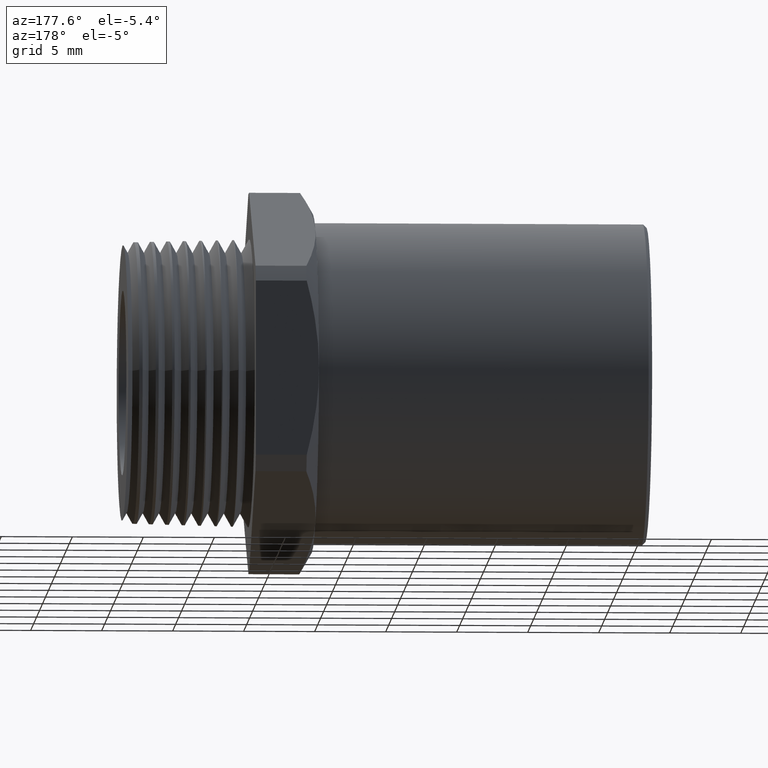
[diagram: clean part render]
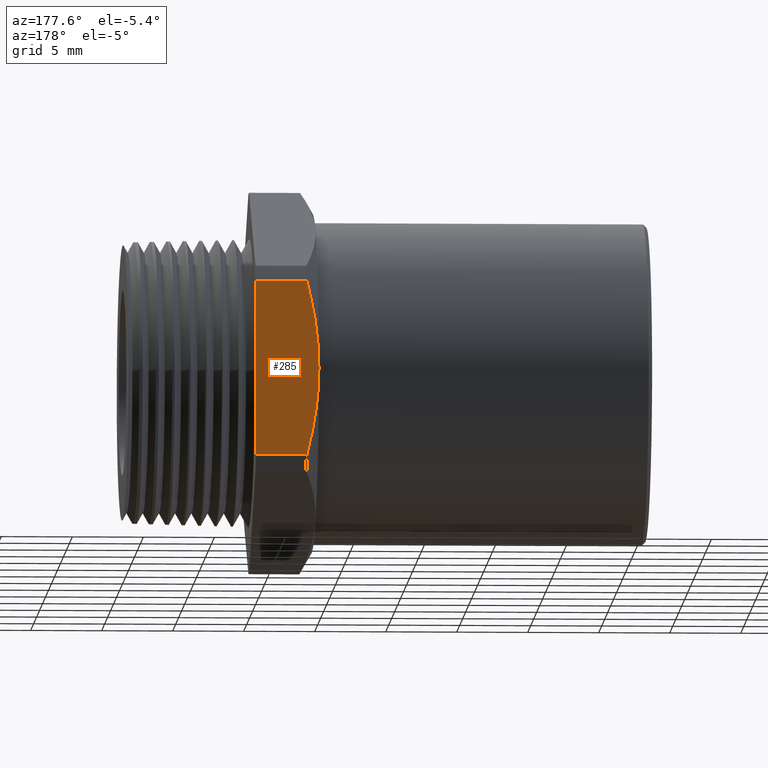
[diagram: same view with one face highlighted and labeled with its STEP entity id]
A machine part, auxiliary view. The second image highlights one B-rep face of the part: STEP entity #285.
In plain terms, the highlighted planar face has unit normal (0, -1, 0).
Its self-contained STEP definition (entity closure, byte-faithful):
#284 = EDGE_LOOP ( 'NONE', ( #358, #357, #364, #336, #335 ) ) ;
#285 = ADVANCED_FACE ( 'NONE', ( #1360 ), #1359, .F. ) ;
#332 = EDGE_CURVE ( 'NONE', #746, #511, #1418, .T. ) ;
#335 = ORIENTED_EDGE ( 'NONE', *, *, #332, .F. ) ;
#336 = ORIENTED_EDGE ( 'NONE', *, *, #496, .T. ) ;
#342 = EDGE_CURVE ( 'NONE', #568, #746, #1439, .T. ) ;
#343 = EDGE_CURVE ( 'NONE', #560, #532, #1438, .T. ) ;
#357 = ORIENTED_EDGE ( 'NONE', *, *, #563, .F. ) ;
#358 = ORIENTED_EDGE ( 'NONE', *, *, #342, .F. ) ;
#364 = ORIENTED_EDGE ( 'NONE', *, *, #343, .T. ) ;
#496 = EDGE_CURVE ( 'NONE', #532, #511, #1760, .T. ) ;
#511 = VERTEX_POINT ( 'NONE', #1796 ) ;
#532 = VERTEX_POINT ( 'NONE', #1804 ) ;
#560 = VERTEX_POINT ( 'NONE', #1874 ) ;
#563 = EDGE_CURVE ( 'NONE', #560, #568, #1871, .T. ) ;
#568 = VERTEX_POINT ( 'NONE', #1863 ) ;
#746 = VERTEX_POINT ( 'NONE', #2287 ) ;
#1355 = DIRECTION ( 'NONE',  ( 0.0000000000000000000, 0.0000000000000000000, -1.000000000000000000 ) ) ;
#1356 = DIRECTION ( 'NONE',  ( 0.0000000000000000000, -1.000000000000000000, 0.0000000000000000000 ) ) ;
#1357 = CARTESIAN_POINT ( 'NONE',  ( 1.160486150631643500, 0.4700000000000004700, -0.2422324555050365000 ) ) ;
#1358 = AXIS2_PLACEMENT_3D ( 'NONE', #1357, #1356, #1355 ) ;
#1359 = PLANE ( 'NONE',  #1358 ) ;
#1360 = FACE_OUTER_BOUND ( 'NONE', #284, .T. ) ;
#1410 = CARTESIAN_POINT ( 'NONE',  ( -0.4910806716851094900, 0.4700000000000005300, -0.2422324555050364700 ) ) ;
#1411 = CARTESIAN_POINT ( 'NONE',  ( -0.5015546330232915100, 0.4700000000000005300, -0.2026329609556580800 ) ) ;
#1412 = CARTESIAN_POINT ( 'NONE',  ( -0.5101824244952599700, 0.4700000000000003600, -0.1622149413236405000 ) ) ;
#1413 = CARTESIAN_POINT ( 'NONE',  ( -0.5218882123429596800, 0.4700000000000005300, -0.08139740221429687900 ) ) ;
#1414 = CARTESIAN_POINT ( 'NONE',  ( -0.5249999999999994700, 0.4700000000000003100, -0.04080368195499199700 ) ) ;
#1415 = CARTESIAN_POINT ( 'NONE',  ( -0.5249999999999999100, 0.4700000000000005300, 0.0000000000000000000 ) ) ;
#1418 = B_SPLINE_CURVE_WITH_KNOTS ( 'NONE', 3,
 ( #1415, #1414, #1413, #1412, #1411, #1410 ),
 .UNSPECIFIED., .F., .F.,
 ( 4, 2, 4 ),
 ( 0.01230667184734446200, 0.01540310173087014500, 0.01849953161439582900 ),
 .UNSPECIFIED. ) ;
#1429 = CARTESIAN_POINT ( 'NONE',  ( -0.5249999999999999100, 0.4700000000000005300, 0.0000000000000000000 ) ) ;
#1430 = CARTESIAN_POINT ( 'NONE',  ( -0.5249999999999994700, 0.4700000000000005300, 0.02039643440592516300 ) ) ;
#1431 = CARTESIAN_POINT ( 'NONE',  ( -0.5242302087654923100, 0.4700000000000005300, 0.04084480894746867600 ) ) ;
#1432 = CARTESIAN_POINT ( 'NONE',  ( -0.5211666293062977600, 0.4700000000000005300, 0.08184438670254314000 ) ) ;
#1433 = CARTESIAN_POINT ( 'NONE',  ( -0.5188680914163583700, 0.4700000000000005300, 0.1023753992933498500 ) ) ;
#1434 = CARTESIAN_POINT ( 'NONE',  ( -0.5100072812899324500, 0.4700000000000003600, 0.1631624035164031500 ) ) ;
#1435 = CARTESIAN_POINT ( 'NONE',  ( -0.5014694581922561900, 0.4700000000000003600, 0.2029549862284593100 ) ) ;
#1436 = CARTESIAN_POINT ( 'NONE',  ( -0.4910806716851094900, 0.4700000000000004700, 0.2422324555050365000 ) ) ;
#1437 = CARTESIAN_POINT ( 'NONE',  ( -0.3499999999999999800, 0.4700000000000004700, -0.2422324555050365000 ) ) ;
#1438 = LINE ( 'NONE', #1437, #1488 ) ;
#1439 = B_SPLINE_CURVE_WITH_KNOTS ( 'NONE', 3,
 ( #1436, #1435, #1434, #1433, #1432, #1431, #1430, #1429 ),
 .UNSPECIFIED., .F., .F.,
 ( 4, 2, 2, 4 ),
 ( 0.006115453213541605300, 0.009211062530443034000, 0.01075886718889374800, 0.01230667184734446200 ),
 .UNSPECIFIED. ) ;
#1487 = DIRECTION ( 'NONE',  ( 0.0000000000000000000, 0.0000000000000000000, -1.000000000000000000 ) ) ;
#1488 = VECTOR ( 'NONE', #1487, 39.37007874015748100 ) ;
#1752 = DIRECTION ( 'NONE',  ( -1.000000000000000000, 0.0000000000000000000, 0.0000000000000000000 ) ) ;
#1753 = VECTOR ( 'NONE', #1752, 39.37007874015748100 ) ;
#1754 = CARTESIAN_POINT ( 'NONE',  ( 1.160486150631643500, 0.4700000000000005300, -0.2422324555050364700 ) ) ;
#1760 = LINE ( 'NONE', #1754, #1753 ) ;
#1796 = CARTESIAN_POINT ( 'NONE',  ( -0.4910806716851094900, 0.4700000000000005300, -0.2422324555050364700 ) ) ;
#1804 = CARTESIAN_POINT ( 'NONE',  ( -0.3499999999999999800, 0.4700000000000004700, -0.2422324555050365500 ) ) ;
#1863 = CARTESIAN_POINT ( 'NONE',  ( -0.4910806716851094900, 0.4700000000000004700, 0.2422324555050365000 ) ) ;
#1868 = DIRECTION ( 'NONE',  ( -1.000000000000000000, 0.0000000000000000000, 0.0000000000000000000 ) ) ;
#1869 = VECTOR ( 'NONE', #1868, 39.37007874015748100 ) ;
#1870 = CARTESIAN_POINT ( 'NONE',  ( 1.160486150631643500, 0.4700000000000004700, 0.2422324555050365000 ) ) ;
#1871 = LINE ( 'NONE', #1870, #1869 ) ;
#1874 = CARTESIAN_POINT ( 'NONE',  ( -0.3499999999999999800, 0.4700000000000004700, 0.2422324555050365000 ) ) ;
#2287 = CARTESIAN_POINT ( 'NONE',  ( -0.5249999999999999100, 0.4700000000000005300, 0.0000000000000000000 ) ) ;